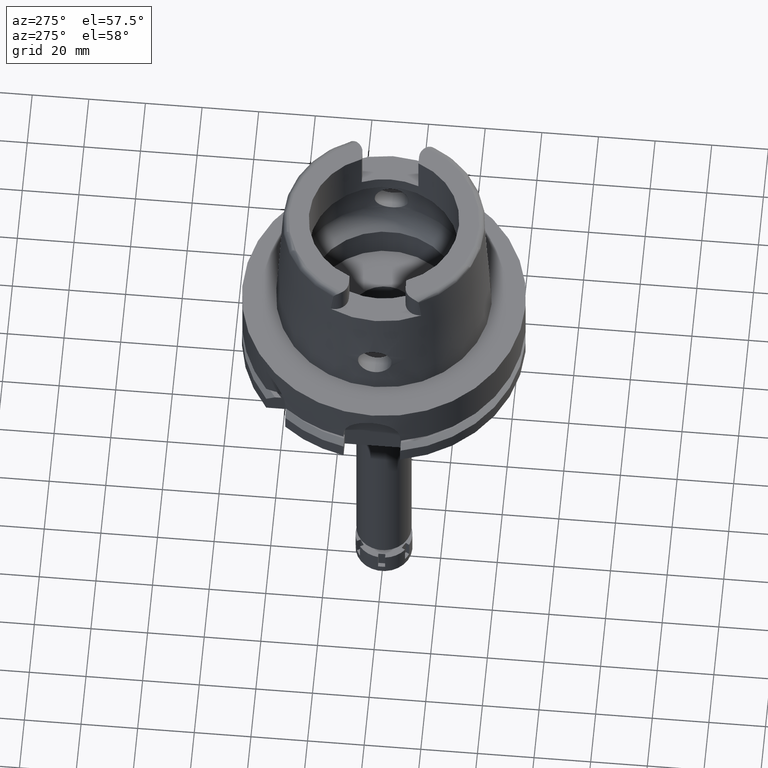
[diagram: clean part render]
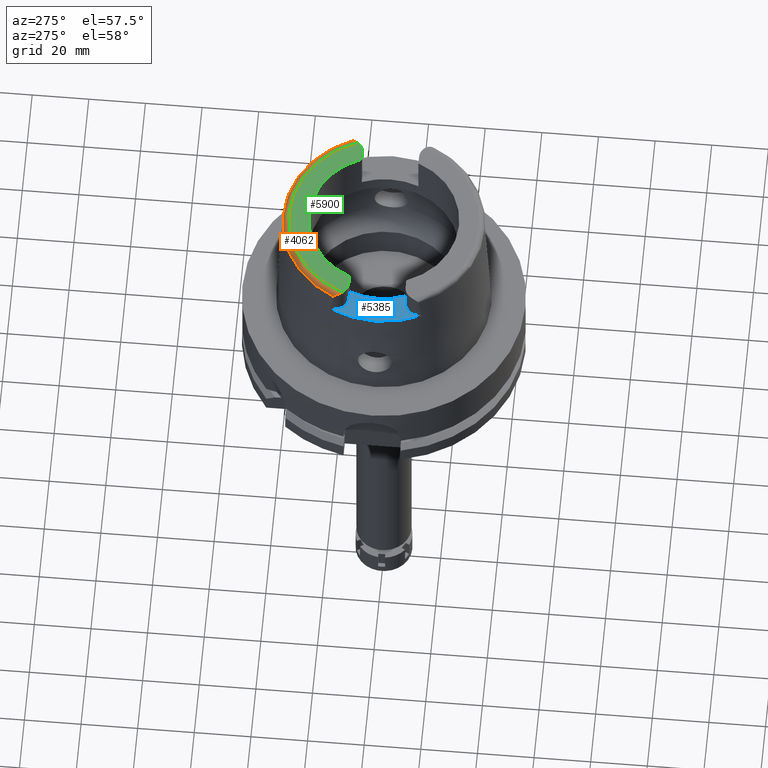
[diagram: same view with three faces highlighted in distinct colors, each labeled with its STEP entity id]
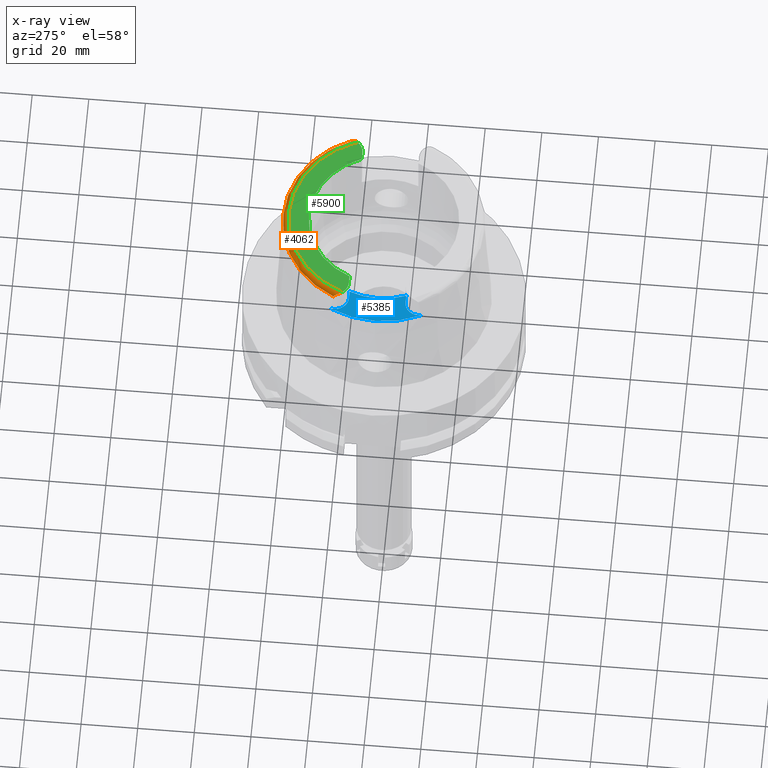
[diagram: x-ray of the same camera — body ghosted, the three highlighted faces saturated]
A machine part, auxiliary view with three faces highlighted in distinct colors.
The next image is the same camera in x-ray (body ghosted, the three faces saturated) — at least one of them is partly hidden behind the body in this view.
Their STEP definitions:

[orange] entity #4062 — the highlighted toroidal blend (fillet) surface has major radius 33.5974 mm and minor (blend) radius 2 mm.
#67 = CARTESIAN_POINT ( 'NONE',  ( -32.25000136840999687, 15.06443228314000038, 48.09991921183000585 ) ) ;
#72 = DIRECTION ( 'NONE',  ( 0.0000000000000000000, 0.0000000000000000000, -1.000000000000000000 ) ) ;
#151 = CARTESIAN_POINT ( 'NONE',  ( 31.35385269249000473, 12.07161079256999869, 50.00000000000000000 ) ) ;
#268 = CARTESIAN_POINT ( 'NONE',  ( 32.25000000000000000, 14.89000000000000057, 48.54599893821999501 ) ) ;
#320 = CARTESIAN_POINT ( 'NONE',  ( 32.23698933338838657, 14.53315827437095109, 48.94271495172434072 ) ) ;
#322 = CARTESIAN_POINT ( 'NONE',  ( 32.25000000000000000, 14.98827131144367542, 48.40083784441879544 ) ) ;
#385 = CARTESIAN_POINT ( 'NONE',  ( 32.00500484644021526, 13.36308030394290114, 49.67990980628337638 ) ) ;
#416 = CARTESIAN_POINT ( 'NONE',  ( -32.19751138235662324, 14.17381327682583425, 49.22541234330702764 ) ) ;
#459 = DIRECTION ( 'NONE',  ( -0.9332215253017949186, 0.3593015233941980191, 0.0000000000000000000 ) ) ;
#505 = CARTESIAN_POINT ( 'NONE',  ( -32.11175532502628016, 13.73655971093155870, 49.49466299999393470 ) ) ;
#507 = DIRECTION ( 'NONE',  ( 0.0000000000000000000, 0.0000000000000000000, 1.000000000000000000 ) ) ;
#610 = CIRCLE ( 'NONE', #2908, 35.59494289391000166 ) ;
#669 = CARTESIAN_POINT ( 'NONE',  ( -32.25000000000000000, 14.89000000000000057, 48.54599893821999501 ) ) ;
#699 = ORIENTED_EDGE ( 'NONE', *, *, #3890, .F. ) ;
#731 = B_SPLINE_CURVE_WITH_KNOTS ( 'NONE', 3,
 ( #268, #5052, #5076, #771, #6020, #868, #320, #2672, #3691, #6054, #3230, #4116, #2764, #3105, #1829, #795, #5019, #5102, #4651, #4083, #4585, #4181, #385, #1709, #4611, #4207, #1301, #1799, #2208 ),
 .UNSPECIFIED., .F., .F.,
 ( 4, 2, 2, 2, 2, 2, 2, 1, 2, 2, 1, 1, 2, 2, 2, 4 ),
 ( 0.0000000000000000000, 0.1249999999999943656, 0.1874999999999923117, 0.2187499999999940048, 0.2499999999999956701, 0.3750000000000010547, 0.4375000000000048850, 0.4687500000000062728, 0.4843750000000083822, 0.5000000000000104361, 0.5625000000000198730, 0.5937500000000250910, 0.6093750000000259792, 0.6250000000000267564, 0.7500000000000186517, 1.000000000000000000 ),
 .UNSPECIFIED. ) ;
#771 = CARTESIAN_POINT ( 'NONE',  ( 32.24470985306119530, 14.65975393674543348, 48.82325495386185565 ) ) ;
#775 = CARTESIAN_POINT ( 'NONE',  ( 32.24997259519825121, 15.06456602472349893, 48.09965197949710358 ) ) ;
#795 = CARTESIAN_POINT ( 'NONE',  ( 32.13030730052854977, 13.81569362351371844, 49.45035471281608608 ) ) ;
#828 = CARTESIAN_POINT ( 'NONE',  ( -31.68320087011071351, 12.58478439452492914, 49.95433150337920836 ) ) ;
#868 = CARTESIAN_POINT ( 'NONE',  ( 32.23855298297688421, 14.55525666458528455, 48.92278200394598997 ) ) ;
#939 = CARTESIAN_POINT ( 'NONE',  ( 0.0000000000000000000, 0.0000000000000000000, 48.09987853799000135 ) ) ;
#956 = CARTESIAN_POINT ( 'NONE',  ( -32.16982095416165777, 14.00136223075673847, 49.34145702481838924 ) ) ;
#1057 = CARTESIAN_POINT ( 'NONE',  ( -32.25000000000000000, 15.04645420973094438, 48.25208728323263330 ) ) ;
#1146 = VERTEX_POINT ( 'NONE', #2315 ) ;
#1301 = CARTESIAN_POINT ( 'NONE',  ( 31.68264163236062814, 12.58363611098235779, 49.95463711956472963 ) ) ;
#1331 = CARTESIAN_POINT ( 'NONE',  ( -31.98014945996588310, 13.28958391738436617, 49.71194137325093010 ) ) ;
#1394 = CARTESIAN_POINT ( 'NONE',  ( -32.22710029277467214, 14.41718040588203920, 49.04161441556297518 ) ) ;
#1641 = CARTESIAN_POINT ( 'NONE',  ( -32.25000136840999687, 15.06443228314000038, 48.09991921183000585 ) ) ;
#1696 = EDGE_CURVE ( 'NONE', #3704, #1964, #1936, .T. ) ;
#1709 = CARTESIAN_POINT ( 'NONE',  ( 31.99949780952918132, 13.34644538153953164, 49.68728616353126881 ) ) ;
#1773 = CARTESIAN_POINT ( 'NONE',  ( -31.84889022511225320, 12.95082494414585028, 49.84110235372649100 ) ) ;
#1775 = CARTESIAN_POINT ( 'NONE',  ( 32.25000000000000000, 14.89000000000000057, 48.54599893821999501 ) ) ;
#1799 = CARTESIAN_POINT ( 'NONE',  ( 31.52580085512536456, 12.31466315343151763, 50.00000000000000711 ) ) ;
#1829 = CARTESIAN_POINT ( 'NONE',  ( 32.14079829604114735, 13.86254764680235319, 49.42348671741216037 ) ) ;
#1855 = B_SPLINE_CURVE_WITH_KNOTS ( 'NONE', 3,
 ( #5647, #4153, #828, #1773, #3664, #3199, #5579, #1331, #2734, #4679, #2302, #3727, #2645, #3761, #505, #5675, #956, #416, #2793, #4704, #3265, #2922, #1394, #3291, #2367, #5198 ),
 .UNSPECIFIED., .F., .F.,
 ( 4, 2, 1, 1, 2, 2, 1, 1, 2, 2, 2, 2, 2, 2, 4 ),
 ( 0.0000000000000000000, 0.2500000000000144329, 0.3125000000000182077, 0.3437500000000207057, 0.3593750000000204836, 0.3750000000000202616, 0.4375000000000194844, 0.4687500000000191513, 0.4843750000000172640, 0.5000000000000153211, 0.6250000000000106581, 0.6875000000000088818, 0.7187500000000081046, 0.7500000000000072164, 1.000000000000000000 ),
 .UNSPECIFIED. ) ;
#1936 = CIRCLE ( 'NONE', #4533, 33.59743838135999994 ) ;
#1964 = VERTEX_POINT ( 'NONE', #151 ) ;
#1982 = DIRECTION ( 'NONE',  ( -0.9060276961631030801, 0.4232183996300014628, 0.0000000000000000000 ) ) ;
#1997 = EDGE_CURVE ( 'NONE', #1146, #1964, #731, .T. ) ;
#1999 = EDGE_LOOP ( 'NONE', ( #5984, #2395, #699, #2079, #5114, #2806, #3805 ) ) ;
#2068 = EDGE_CURVE ( 'NONE', #3704, #5460, #1855, .T. ) ;
#2079 = ORIENTED_EDGE ( 'NONE', *, *, #3359, .F. ) ;
#2208 = CARTESIAN_POINT ( 'NONE',  ( 31.35385269249000473, 12.07161079256999869, 50.00000000000000000 ) ) ;
#2262 = EDGE_CURVE ( 'NONE', #5460, #2692, #2889, .T. ) ;
#2302 = CARTESIAN_POINT ( 'NONE',  ( -32.05071100581540833, 13.50623399469721164, 49.61462143781926670 ) ) ;
#2315 = CARTESIAN_POINT ( 'NONE',  ( 32.25000000000000000, 14.89000000000000057, 48.54599893821999501 ) ) ;
#2367 = CARTESIAN_POINT ( 'NONE',  ( -32.25000000000001421, 14.78330813591319526, 48.70359841934202905 ) ) ;
#2395 = ORIENTED_EDGE ( 'NONE', *, *, #1997, .F. ) ;
#2396 = CARTESIAN_POINT ( 'NONE',  ( -32.25000000000000000, 14.89000000000000057, 48.54599893821999501 ) ) ;
#2455 = VERTEX_POINT ( 'NONE', #4723 ) ;
#2645 = CARTESIAN_POINT ( 'NONE',  ( -32.09827145440807072, 13.68245049150394443, 49.52393082349878028 ) ) ;
#2672 = CARTESIAN_POINT ( 'NONE',  ( 32.23343763414510477, 14.48763751759478069, 48.98261144479381812 ) ) ;
#2692 = VERTEX_POINT ( 'NONE', #67 ) ;
#2699 = CARTESIAN_POINT ( 'NONE',  ( 32.24997259519825121, 15.06456602472349893, 48.09965197949710358 ) ) ;
#2734 = CARTESIAN_POINT ( 'NONE',  ( -31.98719758479892761, 13.31004985060767609, 49.70316487290673990 ) ) ;
#2764 = CARTESIAN_POINT ( 'NONE',  ( 32.16844265705366013, 13.99940399838450489, 49.34079756337541767 ) ) ;
#2793 = CARTESIAN_POINT ( 'NONE',  ( -32.20542540692984090, 14.22966627373524595, 49.18586996303666581 ) ) ;
#2806 = ORIENTED_EDGE ( 'NONE', *, *, #2262, .F. ) ;
#2837 = TOROIDAL_SURFACE ( 'NONE', #5830, 33.59743838135999994, 2.000000000000000000 ) ;
#2889 = B_SPLINE_CURVE_WITH_KNOTS ( 'NONE', 3,
 ( #669, #5824, #1057, #1641 ),
 .UNSPECIFIED., .F., .F.,
 ( 4, 4 ),
 ( 0.0000000000000000000, 1.000000000000000000 ),
 .UNSPECIFIED. ) ;
#2908 = AXIS2_PLACEMENT_3D ( 'NONE', #4234, #72, #1982 ) ;
#2922 = CARTESIAN_POINT ( 'NONE',  ( -32.22439217204257034, 14.39002726805990484, 49.06358433821758069 ) ) ;
#3105 = CARTESIAN_POINT ( 'NONE',  ( 32.15038882765686878, 13.90855415371253834, 49.39613752943326119 ) ) ;
#3109 = CARTESIAN_POINT ( 'NONE',  ( -31.35385269249000473, 12.07161079256999869, 50.00000000000000000 ) ) ;
#3199 = CARTESIAN_POINT ( 'NONE',  ( -31.94621796354151755, 13.19427246604405468, 49.75159069773119569 ) ) ;
#3230 = CARTESIAN_POINT ( 'NONE',  ( 32.20663923995369515, 14.23058043373491088, 49.18723614628753893 ) ) ;
#3265 = CARTESIAN_POINT ( 'NONE',  ( -32.21870237745238086, 14.33756778917264896, 49.10484835802112968 ) ) ;
#3291 = CARTESIAN_POINT ( 'NONE',  ( -32.24706215165803513, 14.63331221552170369, 48.86215700779838755 ) ) ;
#3355 = DIRECTION ( 'NONE',  ( -0.0004184165975219878483, -0.9999999124637716230, 0.0000000000000000000 ) ) ;
#3359 = EDGE_CURVE ( 'NONE', #2455, #3742, #4945, .T. ) ;
#3491 = DIRECTION ( 'NONE',  ( 0.0000000000000000000, 1.000000000000000000, 0.0000000000000000000 ) ) ;
#3664 = CARTESIAN_POINT ( 'NONE',  ( -31.89599084158511388, 13.06210101560456494, 49.80307078958276179 ) ) ;
#3691 = CARTESIAN_POINT ( 'NONE',  ( 32.23156497669937437, 14.46546157516300468, 49.00154081837977316 ) ) ;
#3704 = VERTEX_POINT ( 'NONE', #3109 ) ;
#3710 = DIRECTION ( 'NONE',  ( 0.0000000000000000000, 0.0000000000000000000, -1.000000000000000000 ) ) ;
#3727 = CARTESIAN_POINT ( 'NONE',  ( -32.08471361768042129, 13.62976688719546026, 49.55187484112329344 ) ) ;
#3742 = VERTEX_POINT ( 'NONE', #775 ) ;
#3761 = CARTESIAN_POINT ( 'NONE',  ( -32.10708762006209582, 13.71751219968237301, 49.50506756307341760 ) ) ;
#3768 = CARTESIAN_POINT ( 'NONE',  ( 0.0000000000000000000, 0.0000000000000000000, 50.00000000000000000 ) ) ;
#3805 = ORIENTED_EDGE ( 'NONE', *, *, #2068, .F. ) ;
#3890 = EDGE_CURVE ( 'NONE', #3742, #1146, #4212, .T. ) ;
#4062 = ADVANCED_FACE ( 'NONE', ( #4387 ), #2837, .T. ) ;
#4083 = CARTESIAN_POINT ( 'NONE',  ( 32.07104929441135965, 13.57694912884820759, 49.57974395259893896 ) ) ;
#4116 = CARTESIAN_POINT ( 'NONE',  ( 32.17897606492306295, 14.05841865553923142, 49.30304879920346650 ) ) ;
#4153 = CARTESIAN_POINT ( 'NONE',  ( -31.52591860102711863, 12.31482958975142239, 50.00000000000002132 ) ) ;
#4181 = CARTESIAN_POINT ( 'NONE',  ( 32.01663586166046116, 13.39884982182809914, 49.66381532510680330 ) ) ;
#4207 = CARTESIAN_POINT ( 'NONE',  ( 31.88197110250159128, 13.02386366263761452, 49.81854847825887589 ) ) ;
#4212 = B_SPLINE_CURVE_WITH_KNOTS ( 'NONE', 3,
 ( #2699, #4614, #322, #1775 ),
 .UNSPECIFIED., .F., .F.,
 ( 4, 4 ),
 ( 0.0000000000000000000, 1.000000000000000000 ),
 .UNSPECIFIED. ) ;
#4234 = CARTESIAN_POINT ( 'NONE',  ( 0.0000000000000000000, 0.0000000000000000000, 48.09987853799000135 ) ) ;
#4387 = FACE_OUTER_BOUND ( 'NONE', #1999, .T. ) ;
#4533 = AXIS2_PLACEMENT_3D ( 'NONE', #3768, #5681, #459 ) ;
#4585 = CARTESIAN_POINT ( 'NONE',  ( 32.03371708158832121, 13.45243536510836435, 49.63932531624924138 ) ) ;
#4611 = CARTESIAN_POINT ( 'NONE',  ( 31.94108013938182111, 13.17363191880830797, 49.76261469505435286 ) ) ;
#4614 = CARTESIAN_POINT ( 'NONE',  ( 32.25000000000000000, 15.04645015215344905, 48.25212971884500490 ) ) ;
#4651 = CARTESIAN_POINT ( 'NONE',  ( 32.09883640354698287, 13.68265768955830630, 49.52449476721414356 ) ) ;
#4679 = CARTESIAN_POINT ( 'NONE',  ( -32.01739599369633993, 13.39942740398794996, 49.66419375882517784 ) ) ;
#4704 = CARTESIAN_POINT ( 'NONE',  ( -32.21559581800492111, 14.31090929679399792, 49.12526516298124335 ) ) ;
#4723 = CARTESIAN_POINT ( 'NONE',  ( 0.0000000000000000000, 35.59494289391000166, 48.09987853799000135 ) ) ;
#4945 = CIRCLE ( 'NONE', #5043, 35.59494289391000166 ) ;
#5019 = CARTESIAN_POINT ( 'NONE',  ( 32.12310698791955588, 13.78427229960774625, 49.46815977806865305 ) ) ;
#5043 = AXIS2_PLACEMENT_3D ( 'NONE', #939, #3710, #3491 ) ;
#5052 = CARTESIAN_POINT ( 'NONE',  ( 32.25000000000000711, 14.83656164973346137, 48.62493519400069175 ) ) ;
#5076 = CARTESIAN_POINT ( 'NONE',  ( 32.24915796434952853, 14.77229204092531667, 48.70411622988373779 ) ) ;
#5102 = CARTESIAN_POINT ( 'NONE',  ( 32.11978351870305204, 13.77005375147395405, 49.47613186544176500 ) ) ;
#5114 = ORIENTED_EDGE ( 'NONE', *, *, #5969, .F. ) ;
#5198 = CARTESIAN_POINT ( 'NONE',  ( -32.25000000000000000, 14.89000000000000057, 48.54599893821999501 ) ) ;
#5232 = CARTESIAN_POINT ( 'NONE',  ( 0.0000000000000000000, 0.0000000000000000000, 48.00000000000000000 ) ) ;
#5460 = VERTEX_POINT ( 'NONE', #2396 ) ;
#5579 = CARTESIAN_POINT ( 'NONE',  ( -31.96671511648061070, 13.25139699175266550, 49.72800424400544017 ) ) ;
#5647 = CARTESIAN_POINT ( 'NONE',  ( -31.35385269249000473, 12.07161079256999869, 50.00000000000000000 ) ) ;
#5675 = CARTESIAN_POINT ( 'NONE',  ( -32.14610317425831454, 13.87985422241842670, 49.41537686675965801 ) ) ;
#5681 = DIRECTION ( 'NONE',  ( 0.0000000000000000000, 0.0000000000000000000, -1.000000000000000000 ) ) ;
#5824 = CARTESIAN_POINT ( 'NONE',  ( -32.25000000000000000, 14.98831011535094504, 48.40078052536262732 ) ) ;
#5830 = AXIS2_PLACEMENT_3D ( 'NONE', #5232, #507, #3355 ) ;
#5969 = EDGE_CURVE ( 'NONE', #2692, #2455, #610, .T. ) ;
#5984 = ORIENTED_EDGE ( 'NONE', *, *, #1696, .T. ) ;
#6020 = CARTESIAN_POINT ( 'NONE',  ( 32.24268959277559787, 14.61955383698909117, 48.86302905688015841 ) ) ;
#6054 = CARTESIAN_POINT ( 'NONE',  ( 32.21984169462267289, 14.33883225200673550, 49.10660589714343160 ) ) ;

[blue] entity #5385 — the highlighted planar face has unit normal (0, 0, 1).
#296 = FACE_OUTER_BOUND ( 'NONE', #5325, .T. ) ;
#402 = VERTEX_POINT ( 'NONE', #3920 ) ;
#417 = CARTESIAN_POINT ( 'NONE',  ( -27.36999999999999744, 10.00999999999999979, 40.00000000000000000 ) ) ;
#521 = CARTESIAN_POINT ( 'NONE',  ( -27.36999999999999744, -10.00999999999999979, 40.00000000000000000 ) ) ;
#537 = ORIENTED_EDGE ( 'NONE', *, *, #4427, .F. ) ;
#571 = ORIENTED_EDGE ( 'NONE', *, *, #2707, .F. ) ;
#598 = VERTEX_POINT ( 'NONE', #417 ) ;
#625 = DIRECTION ( 'NONE',  ( 0.0000000000000000000, 0.0000000000000000000, 1.000000000000000000 ) ) ;
#631 = LINE ( 'NONE', #2103, #1907 ) ;
#840 = DIRECTION ( 'NONE',  ( 0.0000000000000000000, 0.0000000000000000000, 1.000000000000000000 ) ) ;
#851 = CARTESIAN_POINT ( 'NONE',  ( -27.36999999999999744, 14.89000000000000057, 40.00000000000000000 ) ) ;
#970 = ORIENTED_EDGE ( 'NONE', *, *, #1606, .F. ) ;
#982 = ORIENTED_EDGE ( 'NONE', *, *, #3219, .F. ) ;
#1117 = ORIENTED_EDGE ( 'NONE', *, *, #3165, .F. ) ;
#1166 = CIRCLE ( 'NONE', #4548, 4.880000000000002558 ) ;
#1174 = DIRECTION ( 'NONE',  ( -1.000000000000000000, 1.435733797136999970E-13, 0.0000000000000000000 ) ) ;
#1215 = AXIS2_PLACEMENT_3D ( 'NONE', #6147, #1868, #3695 ) ;
#1227 = LINE ( 'NONE', #5978, #5239 ) ;
#1286 = VERTEX_POINT ( 'NONE', #2995 ) ;
#1321 = VERTEX_POINT ( 'NONE', #521 ) ;
#1506 = DIRECTION ( 'NONE',  ( 1.000000000000000000, 1.442003377036999905E-13, 0.0000000000000000000 ) ) ;
#1509 = VERTEX_POINT ( 'NONE', #3026 ) ;
#1606 = EDGE_CURVE ( 'NONE', #1321, #4380, #5725, .T. ) ;
#1779 = DIRECTION ( 'NONE',  ( 0.0000000000000000000, 1.000000000000000000, 0.0000000000000000000 ) ) ;
#1868 = DIRECTION ( 'NONE',  ( 0.0000000000000000000, 0.0000000000000000000, 1.000000000000000000 ) ) ;
#1907 = VECTOR ( 'NONE', #4042, 1000.000000000000114 ) ;
#2071 = LINE ( 'NONE', #3063, #4039 ) ;
#2103 = CARTESIAN_POINT ( 'NONE',  ( -32.25000534596000534, 15.99791057084999935, 40.00000000000000000 ) ) ;
#2351 = CIRCLE ( 'NONE', #3434, 26.50000000000000711 ) ;
#2639 = DIRECTION ( 'NONE',  ( -0.8958345712659759874, -0.4443876921390880197, 0.0000000000000000000 ) ) ;
#2701 = EDGE_CURVE ( 'NONE', #1286, #5071, #2351, .T. ) ;
#2707 = EDGE_CURVE ( 'NONE', #4380, #402, #2071, .T. ) ;
#2995 = CARTESIAN_POINT ( 'NONE',  ( -24.53670515777999839, 10.00999999999999979, 40.00000000000000000 ) ) ;
#3026 = CARTESIAN_POINT ( 'NONE',  ( -32.24999999999000266, 15.99793480980999938, 40.00000000000000000 ) ) ;
#3032 = DIRECTION ( 'NONE',  ( -0.9259134021805098813, 0.3777358490566039562, 0.0000000000000000000 ) ) ;
#3063 = CARTESIAN_POINT ( 'NONE',  ( -32.25000000000000000, -14.89000000000000057, 40.00000000000000000 ) ) ;
#3135 = CARTESIAN_POINT ( 'NONE',  ( 0.0000000000000000000, 0.0000000000000000000, 40.00000000000000000 ) ) ;
#3165 = EDGE_CURVE ( 'NONE', #5071, #1321, #1227, .T. ) ;
#3189 = ORIENTED_EDGE ( 'NONE', *, *, #2701, .F. ) ;
#3219 = EDGE_CURVE ( 'NONE', #1509, #4111, #631, .T. ) ;
#3234 = AXIS2_PLACEMENT_3D ( 'NONE', #3135, #5048, #2639 ) ;
#3310 = EDGE_CURVE ( 'NONE', #4111, #598, #1166, .T. ) ;
#3374 = CARTESIAN_POINT ( 'NONE',  ( -32.25000000000000000, -14.89000000000000057, 40.00000000000000000 ) ) ;
#3433 = CIRCLE ( 'NONE', #3234, 35.99995025243999436 ) ;
#3434 = AXIS2_PLACEMENT_3D ( 'NONE', #5449, #625, #3032 ) ;
#3695 = DIRECTION ( 'NONE',  ( 1.000000000000000000, 0.0000000000000000000, 0.0000000000000000000 ) ) ;
#3920 = CARTESIAN_POINT ( 'NONE',  ( -32.24999876011999334, -15.99794043148000000, 40.00000000000000000 ) ) ;
#3946 = LINE ( 'NONE', #4411, #5037 ) ;
#4039 = VECTOR ( 'NONE', #5853, 1000.000000000000000 ) ;
#4042 = DIRECTION ( 'NONE',  ( 4.825266097350802439E-06, -0.9999999999883583124, 1.731606717192930698E-13 ) ) ;
#4111 = VERTEX_POINT ( 'NONE', #4421 ) ;
#4380 = VERTEX_POINT ( 'NONE', #3374 ) ;
#4411 = CARTESIAN_POINT ( 'NONE',  ( -27.36999999999999744, 10.00999999999999979, 40.00000000000000000 ) ) ;
#4421 = CARTESIAN_POINT ( 'NONE',  ( -32.25000000000000000, 14.89000000000000057, 40.00000000000000000 ) ) ;
#4427 = EDGE_CURVE ( 'NONE', #402, #1509, #3433, .T. ) ;
#4548 = AXIS2_PLACEMENT_3D ( 'NONE', #851, #5247, #5686 ) ;
#4617 = EDGE_CURVE ( 'NONE', #598, #1286, #3946, .T. ) ;
#4859 = ORIENTED_EDGE ( 'NONE', *, *, #4617, .F. ) ;
#4966 = ORIENTED_EDGE ( 'NONE', *, *, #3310, .F. ) ;
#5037 = VECTOR ( 'NONE', #1506, 1000.000000000000000 ) ;
#5048 = DIRECTION ( 'NONE',  ( 0.0000000000000000000, 0.0000000000000000000, -1.000000000000000000 ) ) ;
#5071 = VERTEX_POINT ( 'NONE', #5399 ) ;
#5145 = PLANE ( 'NONE',  #1215 ) ;
#5239 = VECTOR ( 'NONE', #1174, 1000.000000000000000 ) ;
#5247 = DIRECTION ( 'NONE',  ( 0.0000000000000000000, 0.0000000000000000000, 1.000000000000000000 ) ) ;
#5325 = EDGE_LOOP ( 'NONE', ( #4859, #4966, #982, #537, #571, #970, #1117, #3189 ) ) ;
#5385 = ADVANCED_FACE ( 'NONE', ( #296 ), #5145, .T. ) ;
#5399 = CARTESIAN_POINT ( 'NONE',  ( -24.53670515777999839, -10.00999999999999979, 40.00000000000000000 ) ) ;
#5449 = CARTESIAN_POINT ( 'NONE',  ( 0.0000000000000000000, 0.0000000000000000000, 40.00000000000000000 ) ) ;
#5558 = CARTESIAN_POINT ( 'NONE',  ( -27.36999999999999744, -14.89000000000000057, 40.00000000000000000 ) ) ;
#5686 = DIRECTION ( 'NONE',  ( -1.000000000000000000, 0.0000000000000000000, 0.0000000000000000000 ) ) ;
#5725 = CIRCLE ( 'NONE', #6028, 4.879999999999999005 ) ;
#5853 = DIRECTION ( 'NONE',  ( 1.119083709707969931E-06, -0.9999999999993738342, -1.731560047848954504E-13 ) ) ;
#5978 = CARTESIAN_POINT ( 'NONE',  ( -24.53670515777999839, -10.00999999999999979, 40.00000000000000000 ) ) ;
#6028 = AXIS2_PLACEMENT_3D ( 'NONE', #5558, #840, #1779 ) ;
#6147 = CARTESIAN_POINT ( 'NONE',  ( 0.0000000000000000000, 0.0000000000000000000, 40.00000000000000000 ) ) ;

[green] entity #5900 — the highlighted planar face has unit normal (0, 0, 1).
#63 = LINE ( 'NONE', #1561, #635 ) ;
#151 = CARTESIAN_POINT ( 'NONE',  ( 31.35385269249000473, 12.07161079256999869, 50.00000000000000000 ) ) ;
#156 = AXIS2_PLACEMENT_3D ( 'NONE', #4780, #4663, #3275 ) ;
#238 = AXIS2_PLACEMENT_3D ( 'NONE', #4395, #5333, #1555 ) ;
#289 = VERTEX_POINT ( 'NONE', #964 ) ;
#459 = DIRECTION ( 'NONE',  ( -0.9332215253017949186, 0.3593015233941980191, 0.0000000000000000000 ) ) ;
#467 = EDGE_LOOP ( 'NONE', ( #2819, #3791, #5226, #1894, #4349, #2851, #4787 ) ) ;
#473 = CARTESIAN_POINT ( 'NONE',  ( 0.0000000000000000000, 0.0000000000000000000, 50.00000000000000000 ) ) ;
#607 = AXIS2_PLACEMENT_3D ( 'NONE', #2464, #4365, #1989 ) ;
#619 = DIRECTION ( 'NONE',  ( 1.000000000000000000, 1.429464217237000036E-13, 0.0000000000000000000 ) ) ;
#635 = VECTOR ( 'NONE', #619, 1000.000000000000000 ) ;
#754 = CARTESIAN_POINT ( 'NONE',  ( -24.53670515777999839, 10.00999999999999979, 50.00000000000000000 ) ) ;
#927 = CARTESIAN_POINT ( 'NONE',  ( 24.53670515777999839, 10.00999999999999979, 50.00000000000000000 ) ) ;
#964 = CARTESIAN_POINT ( 'NONE',  ( 27.36999999999999744, 10.00999999999999979, 50.00000000000000000 ) ) ;
#1310 = EDGE_CURVE ( 'NONE', #1964, #289, #2037, .T. ) ;
#1334 = EDGE_CURVE ( 'NONE', #1633, #1411, #63, .T. ) ;
#1411 = VERTEX_POINT ( 'NONE', #754 ) ;
#1533 = AXIS2_PLACEMENT_3D ( 'NONE', #3397, #5845, #4808 ) ;
#1555 = DIRECTION ( 'NONE',  ( 0.0000000000000000000, 1.000000000000000000, 0.0000000000000000000 ) ) ;
#1561 = CARTESIAN_POINT ( 'NONE',  ( -27.36999999999999744, 10.00999999999999979, 50.00000000000000000 ) ) ;
#1633 = VERTEX_POINT ( 'NONE', #3649 ) ;
#1636 = VERTEX_POINT ( 'NONE', #1842 ) ;
#1696 = EDGE_CURVE ( 'NONE', #3704, #1964, #1936, .T. ) ;
#1722 = EDGE_CURVE ( 'NONE', #1636, #1411, #4825, .T. ) ;
#1842 = CARTESIAN_POINT ( 'NONE',  ( 0.0000000000000000000, 26.50000000000000000, 50.00000000000000000 ) ) ;
#1894 = ORIENTED_EDGE ( 'NONE', *, *, #5501, .T. ) ;
#1936 = CIRCLE ( 'NONE', #4533, 33.59743838135999994 ) ;
#1964 = VERTEX_POINT ( 'NONE', #151 ) ;
#1989 = DIRECTION ( 'NONE',  ( 0.9259134021805098813, 0.3777358490566039562, 0.0000000000000000000 ) ) ;
#2008 = CIRCLE ( 'NONE', #607, 26.50000000000000711 ) ;
#2037 = CIRCLE ( 'NONE', #1533, 4.880000000000001670 ) ;
#2464 = CARTESIAN_POINT ( 'NONE',  ( 0.0000000000000000000, 0.0000000000000000000, 50.00000000000000000 ) ) ;
#2790 = VERTEX_POINT ( 'NONE', #5948 ) ;
#2819 = ORIENTED_EDGE ( 'NONE', *, *, #1334, .T. ) ;
#2829 = DIRECTION ( 'NONE',  ( 1.000000000000000000, -1.423194637337000101E-13, 0.0000000000000000000 ) ) ;
#2851 = ORIENTED_EDGE ( 'NONE', *, *, #1696, .F. ) ;
#3001 = AXIS2_PLACEMENT_3D ( 'NONE', #473, #6139, #5224 ) ;
#3109 = CARTESIAN_POINT ( 'NONE',  ( -31.35385269249000473, 12.07161079256999869, 50.00000000000000000 ) ) ;
#3275 = DIRECTION ( 'NONE',  ( 0.0000000000000000000, -1.000000000000000000, 0.0000000000000000000 ) ) ;
#3284 = EDGE_CURVE ( 'NONE', #1633, #3704, #4155, .T. ) ;
#3386 = LINE ( 'NONE', #927, #5090 ) ;
#3397 = CARTESIAN_POINT ( 'NONE',  ( 27.36999999999999744, 14.89000000000000057, 50.00000000000000000 ) ) ;
#3649 = CARTESIAN_POINT ( 'NONE',  ( -27.36999999999999744, 10.00999999999999979, 50.00000000000000000 ) ) ;
#3704 = VERTEX_POINT ( 'NONE', #3109 ) ;
#3768 = CARTESIAN_POINT ( 'NONE',  ( 0.0000000000000000000, 0.0000000000000000000, 50.00000000000000000 ) ) ;
#3791 = ORIENTED_EDGE ( 'NONE', *, *, #1722, .F. ) ;
#4155 = CIRCLE ( 'NONE', #156, 4.879999999999999005 ) ;
#4349 = ORIENTED_EDGE ( 'NONE', *, *, #1310, .F. ) ;
#4365 = DIRECTION ( 'NONE',  ( 0.0000000000000000000, 0.0000000000000000000, 1.000000000000000000 ) ) ;
#4395 = CARTESIAN_POINT ( 'NONE',  ( 0.0000000000000000000, 0.0000000000000000000, 50.00000000000000000 ) ) ;
#4533 = AXIS2_PLACEMENT_3D ( 'NONE', #3768, #5681, #459 ) ;
#4663 = DIRECTION ( 'NONE',  ( 0.0000000000000000000, 0.0000000000000000000, -1.000000000000000000 ) ) ;
#4780 = CARTESIAN_POINT ( 'NONE',  ( -27.36999999999999744, 14.89000000000000057, 50.00000000000000000 ) ) ;
#4787 = ORIENTED_EDGE ( 'NONE', *, *, #3284, .F. ) ;
#4808 = DIRECTION ( 'NONE',  ( 0.8163632566568778115, -0.5775387720149849358, 0.0000000000000000000 ) ) ;
#4825 = CIRCLE ( 'NONE', #238, 26.50000000000000000 ) ;
#5090 = VECTOR ( 'NONE', #2829, 1000.000000000000000 ) ;
#5224 = DIRECTION ( 'NONE',  ( 1.000000000000000000, 0.0000000000000000000, 0.0000000000000000000 ) ) ;
#5226 = ORIENTED_EDGE ( 'NONE', *, *, #5577, .F. ) ;
#5319 = PLANE ( 'NONE',  #3001 ) ;
#5333 = DIRECTION ( 'NONE',  ( 0.0000000000000000000, 0.0000000000000000000, 1.000000000000000000 ) ) ;
#5501 = EDGE_CURVE ( 'NONE', #2790, #289, #3386, .T. ) ;
#5577 = EDGE_CURVE ( 'NONE', #2790, #1636, #2008, .T. ) ;
#5681 = DIRECTION ( 'NONE',  ( 0.0000000000000000000, 0.0000000000000000000, -1.000000000000000000 ) ) ;
#5760 = FACE_OUTER_BOUND ( 'NONE', #467, .T. ) ;
#5845 = DIRECTION ( 'NONE',  ( 0.0000000000000000000, 0.0000000000000000000, -1.000000000000000000 ) ) ;
#5900 = ADVANCED_FACE ( 'NONE', ( #5760 ), #5319, .T. ) ;
#5948 = CARTESIAN_POINT ( 'NONE',  ( 24.53670515777999839, 10.00999999999999979, 50.00000000000000000 ) ) ;
#6139 = DIRECTION ( 'NONE',  ( 0.0000000000000000000, 0.0000000000000000000, 1.000000000000000000 ) ) ;